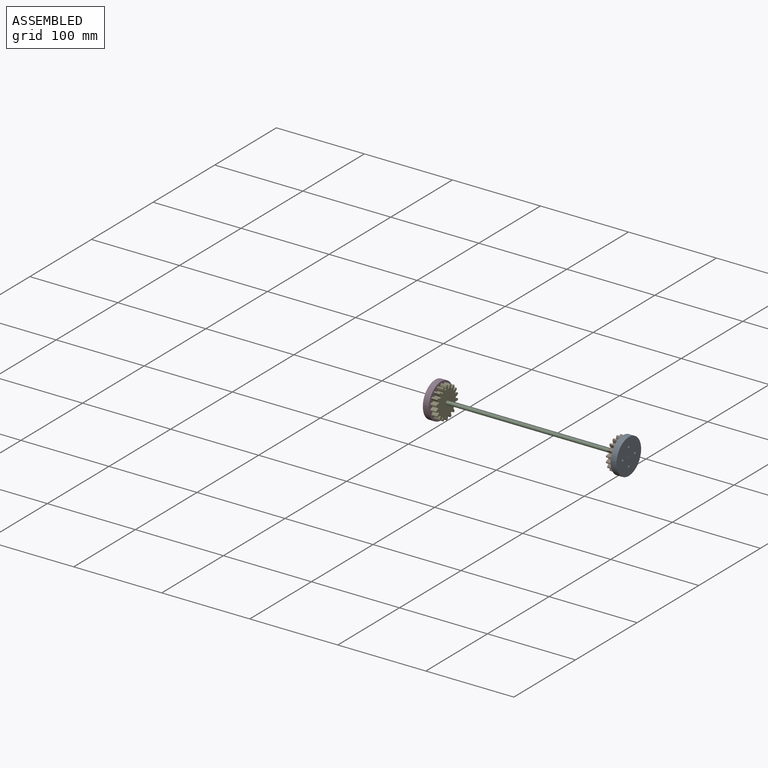
[diagram: assembled view]
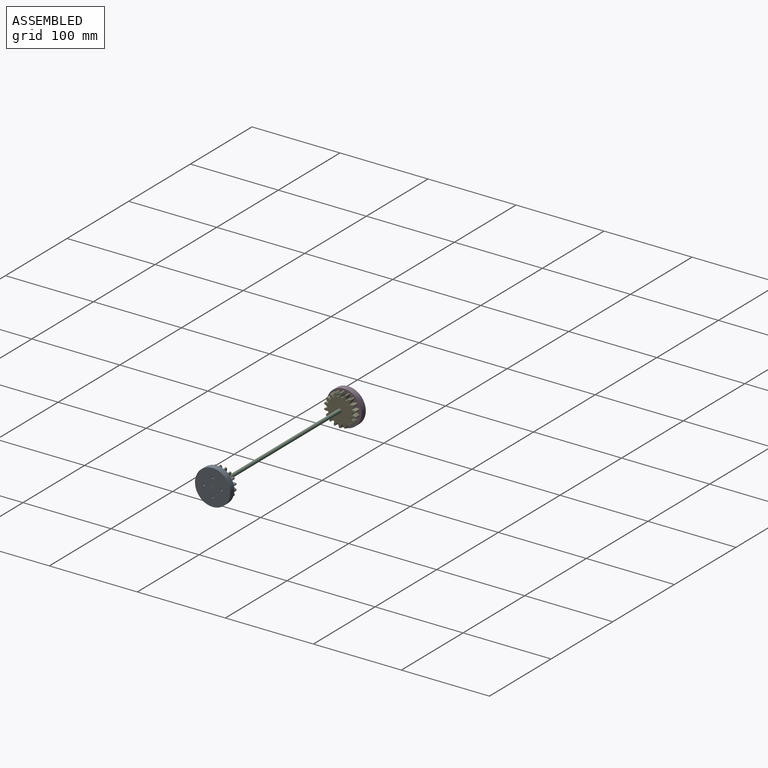
[diagram: assembled view, second angle]
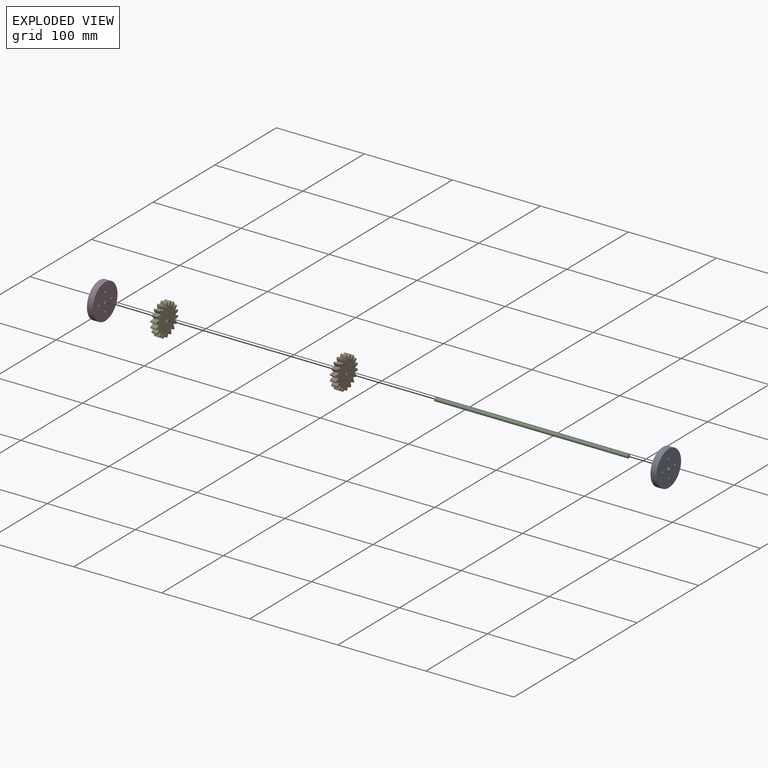
[diagram: exploded view]
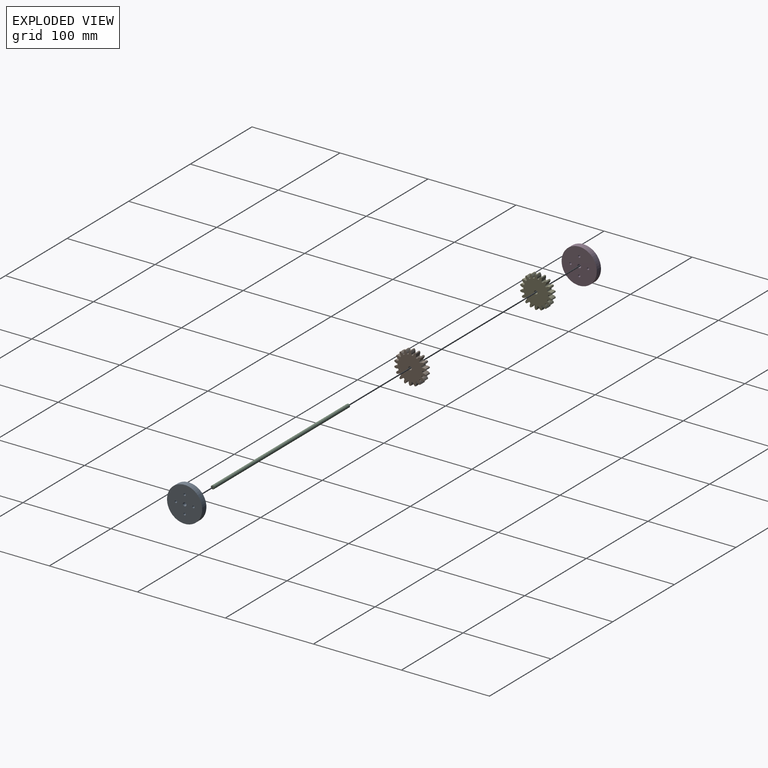
[diagram: exploded view, second angle]
ASSEMBLY  parts=5 mates=4
PART A: 8 faces, bbox 6.8x40x40 mm
  f0: cylinder r=2mm len=6.8mm, axis (1,0,0), area 85.5mm2, adj f6,f7
  f1: cylinder r=1.25mm len=6.8mm, axis (1,0,0), area 53.2mm2, adj f6,f7
  f2: cylinder r=1.25mm len=6.8mm, axis (1,0,0), area 53.2mm2, adj f6,f7
  f3: cylinder r=1.25mm len=6.8mm, axis (1,0,0), area 53.2mm2, adj f6,f7
  f4: cylinder r=1.25mm len=6.8mm, axis (1,0,0), area 53.2mm2, adj f6,f7
  f5: cylinder r=20mm len=40mm, axis (1,0,0), area 854.5mm2, adj f6,f7
  f6: plane 40x40mm, normal (-1,0,0), area 1224.6mm2, adj f0,f1,f2,f3,f4,f5
  f7: plane 40x40mm, normal (1,0,0), area 1224.6mm2, adj f0,f1,f2,f3,f4,f5
PART B: 111 faces, bbox 6.8x35.7x36 mm
  f0: cylinder r=18mm len=6.8mm, axis (-1,0,0), area 8.3mm2, adj f17,f20,f101,f108
  f1: cylinder r=18mm len=6.8mm, axis (-1,0,0), area 8.3mm2, adj f17,f20,f91,f103
  f2: cylinder r=18mm len=6.8mm, axis (-1,0,0), area 8.3mm2, adj f17,f20,f21,f98
  f3: cylinder r=18mm len=6.8mm, axis (-1,0,0), area 8.3mm2, adj f17,f20,f93,f96
  f4: cylinder r=18mm len=6.8mm, axis (-1,0,0), area 8.3mm2, adj f17,f20,f76,f88
  f5: cylinder r=18mm len=6.8mm, axis (-1,0,0), area 8.3mm2, adj f17,f20,f83,f86
  f6: cylinder r=18mm len=6.8mm, axis (-1,0,0), area 8.3mm2, adj f17,f20,f71,f78
  f7: cylinder r=18mm len=6.8mm, axis (-1,0,0), area 8.3mm2, adj f17,f20,f73,f106
  f8: cylinder r=18mm len=6.8mm, axis (-1,0,0), area 8.3mm2, adj f17,f20,f56,f68
  f9: cylinder r=18mm len=6.8mm, axis (-1,0,0), area 8.3mm2, adj f17,f20,f63,f66
  f10: cylinder r=18mm len=6.8mm, axis (-1,0,0), area 8.3mm2, adj f17,f20,f51,f58
  f11: cylinder r=18mm len=6.8mm, axis (-1,0,0), area 8.3mm2, adj f17,f20,f53,f81
  f12: cylinder r=18mm len=6.8mm, axis (-1,0,0), area 8.3mm2, adj f17,f20,f48,f61
  f13: cylinder r=18mm len=6.8mm, axis (-1,0,0), area 8.3mm2, adj f17,f20,f43,f46
  f14: cylinder r=18mm len=6.8mm, axis (-1,0,0), area 8.3mm2, adj f17,f20,f31,f38
  f15: cylinder r=18mm len=6.8mm, axis (-1,0,0), area 8.3mm2, adj f17,f20,f33,f41
  f16: cylinder r=18mm len=6.8mm, axis (-1,0,0), area 8.3mm2, adj f17,f20,f28,f36
  f17: plane 36.01x35.68mm, normal (1,0,0), area 792.8mm2, adj f0,f1,f2,f3,f4,f5,f6,f7
  f18: cylinder r=2mm len=6.8mm, axis (-1,0,0), area 85.5mm2, adj f17,f20
  f19: cylinder r=18mm len=6.8mm, axis (-1,0,0), area 8.3mm2, adj f17,f20,f23,f26
  f20: plane 36.01x35.68mm, normal (-1,0,0), area 792.8mm2, adj f0,f1,f2,f3,f4,f5,f6,f7
  f21: extruded ~6.8x3.2mm, area 24.5mm2, adj f2,f17,f20,f24
  f22: cylinder r=13.95mm len=6.8mm, axis (-1,0,0), area 4.3mm2, adj f17,f20,f24,f25
  f23: extruded ~6.8x3.2mm, area 24.5mm2, adj f17,f19,f20,f25
  f24: cylinder r=0.72mm len=6.8mm, axis (-1,0,0), area 7.5mm2, adj f17,f20,f21,f22
  f25: cylinder r=0.72mm len=6.8mm, axis (-1,0,0), area 7.5mm2, adj f17,f20,f22,f23
  f26: extruded ~6.8x3.51mm, area 24.5mm2, adj f17,f19,f20,f29
  f27: cylinder r=13.95mm len=6.8mm, axis (-1,0,0), area 4.3mm2, adj f17,f20,f29,f30
  f28: extruded ~6.8x2.51mm, area 24.5mm2, adj f16,f17,f20,f30
  f29: cylinder r=0.72mm len=6.8mm, axis (-1,0,0), area 7.5mm2, adj f17,f20,f26,f27
  f30: cylinder r=0.72mm len=6.8mm, axis (-1,0,0), area 7.5mm2, adj f17,f20,f27,f28
  f31: extruded ~6.8x2.87mm, area 24.5mm2, adj f14,f17,f20,f34
  f32: cylinder r=13.95mm len=6.8mm, axis (-1,0,0), area 4.3mm2, adj f17,f20,f34,f35
  f33: extruded ~6.8x3.51mm, area 24.5mm2, adj f15,f17,f20,f35
  f34: cylinder r=0.72mm len=6.8mm, axis (-1,0,0), area 7.5mm2, adj f17,f20,f31,f32
  f35: cylinder r=0.72mm len=6.8mm, axis (-1,0,0), area 7.5mm2, adj f17,f20,f32,f33
  f36: extruded ~6.8x3.4mm, area 24.5mm2, adj f16,f17,f20,f39
  f37: cylinder r=13.95mm len=6.8mm, axis (-1,0,0), area 4.3mm2, adj f17,f20,f39,f40
  f38: extruded ~6.8x3.18mm, area 24.5mm2, adj f14,f17,f20,f40
  f39: cylinder r=0.72mm len=6.8mm, axis (-1,0,0), area 7.5mm2, adj f17,f20,f36,f37
  f40: cylinder r=0.72mm len=6.8mm, axis (-1,0,0), area 7.5mm2, adj f17,f20,f37,f38
  f41: extruded ~6.8x2.9mm, area 24.5mm2, adj f15,f17,f20,f44
  f42: cylinder r=13.95mm len=6.8mm, axis (-1,0,0), area 4.3mm2, adj f17,f20,f44,f45
  f43: extruded ~6.8x3.41mm, area 24.5mm2, adj f13,f17,f20,f45
  f44: cylinder r=0.72mm len=6.8mm, axis (-1,0,0), area 7.5mm2, adj f17,f20,f41,f42
  f45: cylinder r=0.72mm len=6.8mm, axis (-1,0,0), area 7.5mm2, adj f17,f20,f42,f43
  f46: extruded ~6.8x3.41mm, area 24.5mm2, adj f13,f17,f20,f49
  f47: cylinder r=13.95mm len=6.8mm, axis (-1,0,0), area 4.3mm2, adj f17,f20,f49,f50
  f48: extruded ~6.8x2.9mm, area 24.5mm2, adj f12,f17,f20,f50
  f49: cylinder r=0.72mm len=6.8mm, axis (-1,0,0), area 7.5mm2, adj f17,f20,f46,f47
  f50: cylinder r=0.72mm len=6.8mm, axis (-1,0,0), area 7.5mm2, adj f17,f20,f47,f48
  f51: extruded ~6.8x3.2mm, area 24.5mm2, adj f10,f17,f20,f54
  f52: cylinder r=13.95mm len=6.8mm, axis (-1,0,0), area 4.3mm2, adj f17,f20,f54,f55
  f53: extruded ~6.8x3.2mm, area 24.5mm2, adj f11,f17,f20,f55
  f54: cylinder r=0.72mm len=6.8mm, axis (-1,0,0), area 7.5mm2, adj f17,f20,f51,f52
  f55: cylinder r=0.72mm len=6.8mm, axis (-1,0,0), area 7.5mm2, adj f17,f20,f52,f53
  f56: extruded ~6.8x2.51mm, area 24.5mm2, adj f8,f17,f20,f59
  f57: cylinder r=13.95mm len=6.8mm, axis (-1,0,0), area 4.3mm2, adj f17,f20,f59,f60
  f58: extruded ~6.8x3.51mm, area 24.5mm2, adj f10,f17,f20,f60
  f59: cylinder r=0.72mm len=6.8mm, axis (-1,0,0), area 7.5mm2, adj f17,f20,f56,f57
  f60: cylinder r=0.72mm len=6.8mm, axis (-1,0,0), area 7.5mm2, adj f17,f20,f57,f58
  f61: extruded ~6.8x3.51mm, area 24.5mm2, adj f12,f17,f20,f64
  f62: cylinder r=13.95mm len=6.8mm, axis (-1,0,0), area 4.3mm2, adj f17,f20,f64,f65
  f63: extruded ~6.8x2.87mm, area 24.5mm2, adj f9,f17,f20,f65
  f64: cylinder r=0.72mm len=6.8mm, axis (-1,0,0), area 7.5mm2, adj f17,f20,f61,f62
  f65: cylinder r=0.72mm len=6.8mm, axis (-1,0,0), area 7.5mm2, adj f17,f20,f62,f63
  f66: extruded ~6.8x3.18mm, area 24.5mm2, adj f9,f17,f20,f69
  f67: cylinder r=13.95mm len=6.8mm, axis (-1,0,0), area 4.3mm2, adj f17,f20,f69,f70
  f68: extruded ~6.8x3.4mm, area 24.5mm2, adj f8,f17,f20,f70
  f69: cylinder r=0.72mm len=6.8mm, axis (-1,0,0), area 7.5mm2, adj f17,f20,f66,f67
  f70: cylinder r=0.72mm len=6.8mm, axis (-1,0,0), area 7.5mm2, adj f17,f20,f67,f68
  f71: extruded ~6.8x2.9mm, area 24.5mm2, adj f6,f17,f20,f74
  f72: cylinder r=13.95mm len=6.8mm, axis (-1,0,0), area 4.3mm2, adj f17,f20,f74,f75
  f73: extruded ~6.8x3.41mm, area 24.5mm2, adj f7,f17,f20,f75
  f74: cylinder r=0.72mm len=6.8mm, axis (-1,0,0), area 7.5mm2, adj f17,f20,f71,f72
  f75: cylinder r=0.72mm len=6.8mm, axis (-1,0,0), area 7.5mm2, adj f17,f20,f72,f73
  f76: extruded ~6.8x2.87mm, area 24.5mm2, adj f4,f17,f20,f79
  f77: cylinder r=13.95mm len=6.8mm, axis (-1,0,0), area 4.3mm2, adj f17,f20,f79,f80
  f78: extruded ~6.8x3.51mm, area 24.5mm2, adj f6,f17,f20,f80
  f79: cylinder r=0.72mm len=6.8mm, axis (-1,0,0), area 7.5mm2, adj f17,f20,f76,f77
  f80: cylinder r=0.72mm len=6.8mm, axis (-1,0,0), area 7.5mm2, adj f17,f20,f77,f78
  f81: extruded ~6.8x3.51mm, area 24.5mm2, adj f11,f17,f20,f84
  f82: cylinder r=13.95mm len=6.8mm, axis (-1,0,0), area 4.3mm2, adj f17,f20,f84,f85
  f83: extruded ~6.8x2.51mm, area 24.5mm2, adj f5,f17,f20,f85
  f84: cylinder r=0.72mm len=6.8mm, axis (-1,0,0), area 7.5mm2, adj f17,f20,f81,f82
  f85: cylinder r=0.72mm len=6.8mm, axis (-1,0,0), area 7.5mm2, adj f17,f20,f82,f83
  f86: extruded ~6.8x3.4mm, area 24.5mm2, adj f5,f17,f20,f89
  f87: cylinder r=13.95mm len=6.8mm, axis (-1,0,0), area 4.3mm2, adj f17,f20,f89,f90
  f88: extruded ~6.8x3.18mm, area 24.5mm2, adj f4,f17,f20,f90
  f89: cylinder r=0.72mm len=6.8mm, axis (-1,0,0), area 7.5mm2, adj f17,f20,f86,f87
  f90: cylinder r=0.72mm len=6.8mm, axis (-1,0,0), area 7.5mm2, adj f17,f20,f87,f88
  f91: extruded ~6.8x3.18mm, area 24.5mm2, adj f1,f17,f20,f94
  f92: cylinder r=13.95mm len=6.8mm, axis (-1,0,0), area 4.3mm2, adj f17,f20,f94,f95
  f93: extruded ~6.8x3.4mm, area 24.5mm2, adj f3,f17,f20,f95
  f94: cylinder r=0.72mm len=6.8mm, axis (-1,0,0), area 7.5mm2, adj f17,f20,f91,f92
  f95: cylinder r=0.72mm len=6.8mm, axis (-1,0,0), area 7.5mm2, adj f17,f20,f92,f93
  f96: extruded ~6.8x2.51mm, area 24.5mm2, adj f3,f17,f20,f99
  f97: cylinder r=13.95mm len=6.8mm, axis (-1,0,0), area 4.3mm2, adj f17,f20,f99,f100
  f98: extruded ~6.8x3.51mm, area 24.5mm2, adj f2,f17,f20,f100
  f99: cylinder r=0.72mm len=6.8mm, axis (-1,0,0), area 7.5mm2, adj f17,f20,f96,f97
  f100: cylinder r=0.72mm len=6.8mm, axis (-1,0,0), area 7.5mm2, adj f17,f20,f97,f98
  f101: extruded ~6.8x3.51mm, area 24.5mm2, adj f0,f17,f20,f104
  f102: cylinder r=13.95mm len=6.8mm, axis (-1,0,0), area 4.3mm2, adj f17,f20,f104,f105
  f103: extruded ~6.8x2.87mm, area 24.5mm2, adj f1,f17,f20,f105
  f104: cylinder r=0.72mm len=6.8mm, axis (-1,0,0), area 7.5mm2, adj f17,f20,f101,f102
  f105: cylinder r=0.72mm len=6.8mm, axis (-1,0,0), area 7.5mm2, adj f17,f20,f102,f103
  f106: extruded ~6.8x3.41mm, area 24.5mm2, adj f7,f17,f20,f109
  f107: cylinder r=13.95mm len=6.8mm, axis (-1,0,0), area 4.3mm2, adj f17,f20,f109,f110
  f108: extruded ~6.8x2.9mm, area 24.5mm2, adj f0,f17,f20,f110
  f109: cylinder r=0.72mm len=6.8mm, axis (-1,0,0), area 7.5mm2, adj f17,f20,f106,f107
  f110: cylinder r=0.72mm len=6.8mm, axis (-1,0,0), area 7.5mm2, adj f17,f20,f107,f108
PART C: 3 faces, bbox 220x4x4 mm
  f0: cylinder r=2mm len=220mm, axis (-1,0,0), area 2764.6mm2, adj f1,f2
  f1: plane 4x4mm, normal (1,0,0), area 12.6mm2, adj f0
  f2: plane 4x4mm, normal (-1,0,0), area 12.6mm2, adj f0
PART D: same geometry as A
PART E: same geometry as B
PLACE A t=(-197.46,-15.75,7.08)mm
PLACE B t=(-194.26,-14.95,7.08)mm
PLACE C t=(-197.46,-45.75,7.08)mm
PLACE D t=(-410.66,-15.75,7.08)mm
PLACE E t=(-393.86,-14.95,7.08)mm
MATE revolute C.f0 <-> D.f0  axis (-1,0,0) through (-307.46,-45.75,7.08)mm
MATE fastened A.f5 <-> B.f0  axis (-1,0,0) through (-94.26,-45.75,7.08)mm
MATE fastened D.f0 <-> E.f0  axis (1,0,0) through (-300.66,-45.75,7.08)mm
MATE revolute C.f0 <-> A.f5  axis (-1,0,0) through (-87.46,-45.75,7.08)mm
